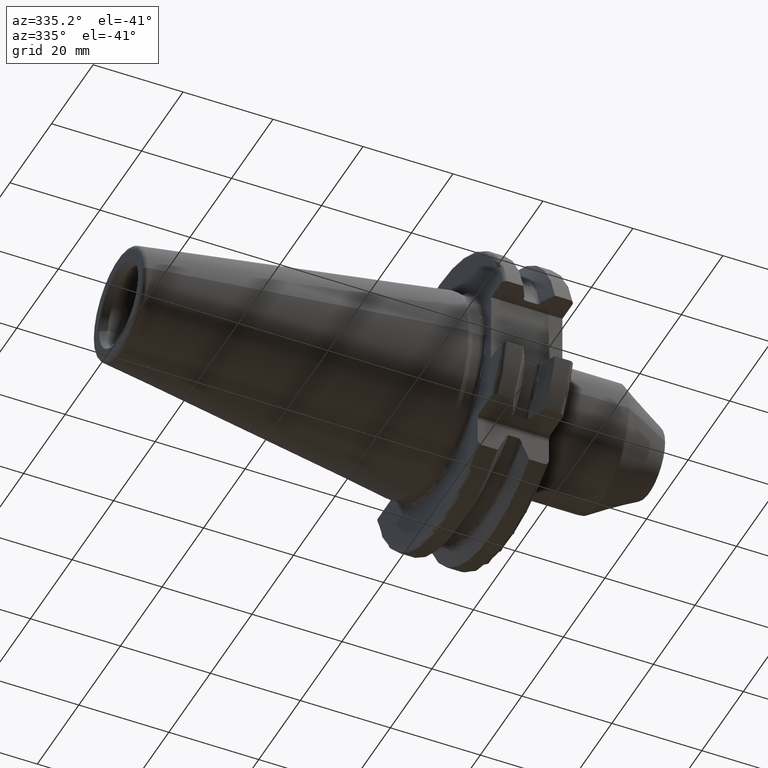
[diagram: clean part render]
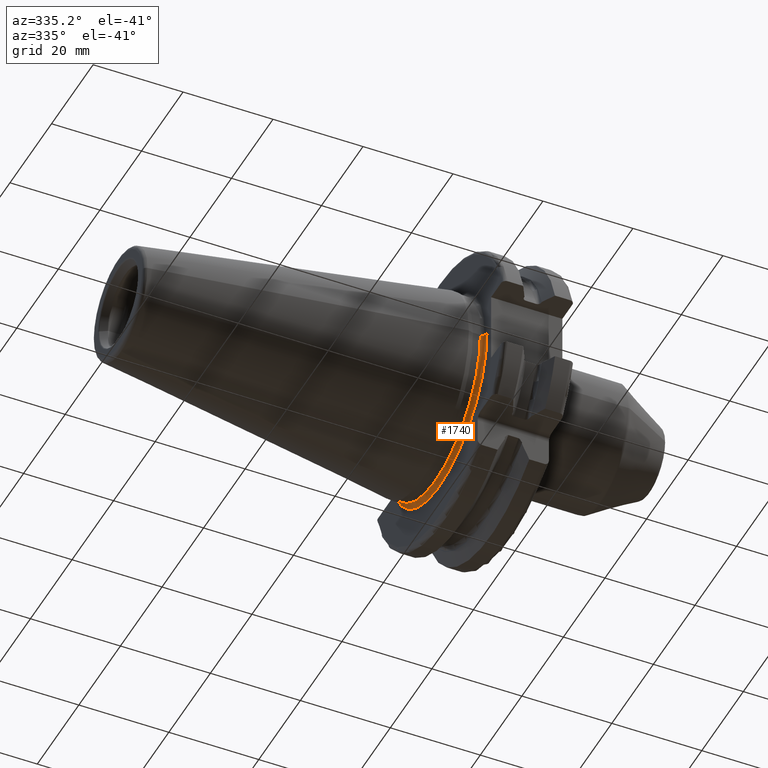
[diagram: same view with one face highlighted and labeled with its STEP entity id]
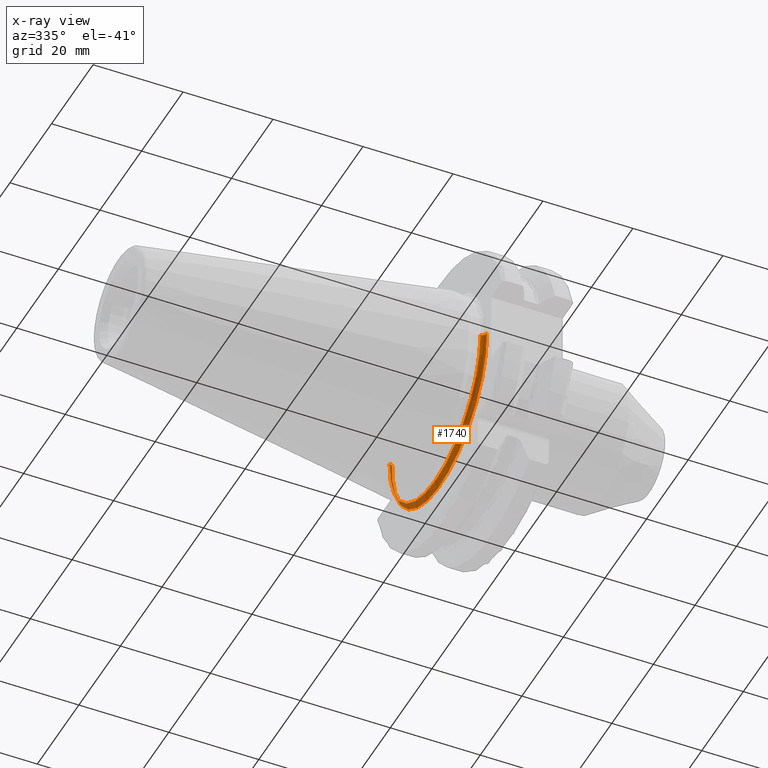
[diagram: x-ray of the same camera — body ghosted, the highlighted face saturated]
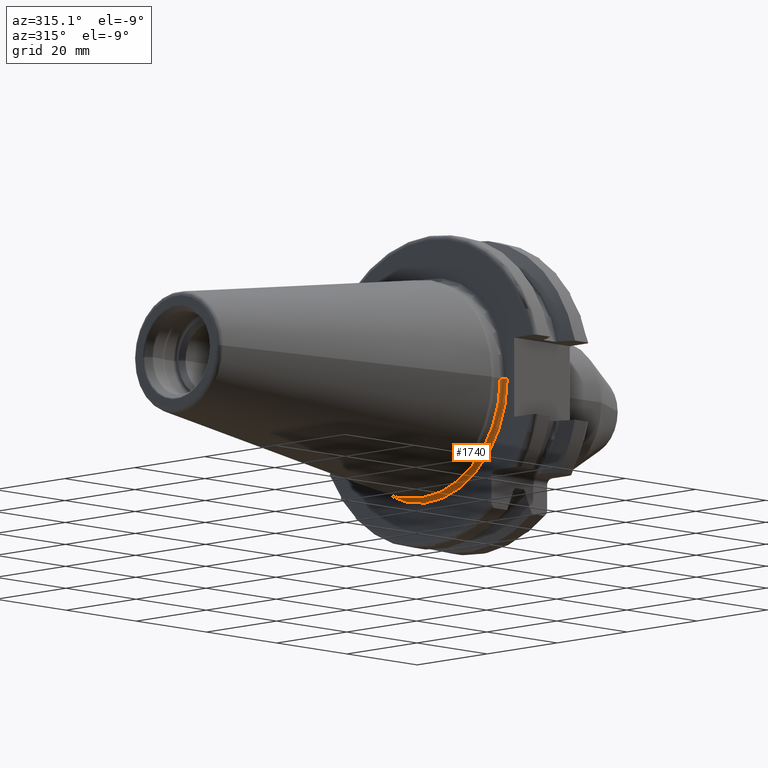
[diagram: same view with one face highlighted and labeled with its STEP entity id]
A machine part, auxiliary view. The second image highlights one B-rep face of the part: STEP entity #1740.
The next image is the same camera in x-ray: the body ghosted, the highlighted face saturated — about 4% of this face is hidden behind the body in this view.
A second angle (auxiliary view) of the same face is appended — the face is thin or edge-on in the first view.
In plain terms, the highlighted toroidal blend (fillet) surface has major radius 22.875 mm and minor (blend) radius 1 mm.
Its self-contained STEP definition (entity closure, byte-faithful):
#91=CARTESIAN_POINT('',(2.2E0,0.E0,0.E0));
#92=DIRECTION('',(-1.E0,0.E0,0.E0));
#93=DIRECTION('',(0.E0,1.E0,0.E0));
#94=AXIS2_PLACEMENT_3D('',#91,#92,#93);
#96=CARTESIAN_POINT('',(3.145714015969E0,2.255E1,0.E0));
#97=CARTESIAN_POINT('',(3.145714015969E0,2.255E1,-1.830251188857E-1));
#98=CARTESIAN_POINT('',(3.147263299438E0,2.255E1,-5.490774984715E-1));
#99=CARTESIAN_POINT('',(3.153915624300E0,2.255E1,-1.098219783342E0));
#100=CARTESIAN_POINT('',(3.163955531798E0,2.255E1,-1.647254187265E0));
#101=CARTESIAN_POINT('',(3.175890292850E0,2.255E1,-2.196155647006E0));
#102=CARTESIAN_POINT('',(3.187756155044E0,2.255E1,-2.744876756971E0));
#103=CARTESIAN_POINT('',(3.197183898560E0,2.255E1,-3.293518646440E0));
#104=CARTESIAN_POINT('',(3.2E0,2.255E1,-3.659354563864E0));
#105=CARTESIAN_POINT('',(3.2E0,2.255E1,-3.842281223440E0));
#107=CARTESIAN_POINT('',(2.2E0,2.2875E1,0.E0));
#108=DIRECTION('',(0.E0,0.E0,-1.E0));
#109=DIRECTION('',(9.457140159689E-1,-3.25E-1,0.E0));
#110=AXIS2_PLACEMENT_3D('',#107,#108,#109);
#112=CARTESIAN_POINT('',(2.2E0,-2.2875E1,0.E0));
#113=DIRECTION('',(0.E0,0.E0,1.E0));
#114=DIRECTION('',(1.E0,0.E0,0.E0));
#115=AXIS2_PLACEMENT_3D('',#112,#113,#114);
#117=CARTESIAN_POINT('',(3.2E0,0.E0,0.E0));
#118=DIRECTION('',(-1.E0,0.E0,0.E0));
#119=DIRECTION('',(0.E0,9.857923497268E-1,-1.679685780739E-1));
#120=AXIS2_PLACEMENT_3D('',#117,#118,#119);
#864=CARTESIAN_POINT('',(3.145714015969E0,2.255E1,0.E0));
#1338=CARTESIAN_POINT('',(2.2E0,2.1875E1,0.E0));
#1340=VERTEX_POINT('',#1338);
#1342=CARTESIAN_POINT('',(3.2E0,-2.2875E1,0.E0));
#1343=CARTESIAN_POINT('',(2.2E0,-2.1875E1,0.E0));
#1344=VERTEX_POINT('',#1342);
#1345=VERTEX_POINT('',#1343);
#1498=CARTESIAN_POINT('',(3.2E0,2.255E1,-3.842281223440E0));
#1500=VERTEX_POINT('',#1498);
#1520=VERTEX_POINT('',#864);
#1724=CARTESIAN_POINT('',(2.2E0,0.E0,0.E0));
#1725=DIRECTION('',(1.E0,0.E0,0.E0));
#1726=DIRECTION('',(0.E0,-1.E0,0.E0));
#1727=AXIS2_PLACEMENT_3D('',#1724,#1725,#1726);
#1728=TOROIDAL_SURFACE('',#1727,2.2875E1,1.E0);
#1730=ORIENTED_EDGE('',*,*,#1729,.F.);
#1732=ORIENTED_EDGE('',*,*,#1731,.T.);
#1733=ORIENTED_EDGE('',*,*,#1719,.T.);
#1735=ORIENTED_EDGE('',*,*,#1734,.F.);
#1737=ORIENTED_EDGE('',*,*,#1736,.F.);
#1738=EDGE_LOOP('',(#1730,#1732,#1733,#1735,#1737));
#1739=FACE_OUTER_BOUND('',#1738,.F.);
#1740=ADVANCED_FACE('',(#1739),#1728,.F.);
#95=CIRCLE('',#94,2.1875E1);
#106=B_SPLINE_CURVE_WITH_KNOTS('',3,(#96,#97,#98,#99,#100,#101,#102,#103,#104,
#105),.UNSPECIFIED.,.F.,.F.,(4,1,1,1,1,1,1,4),(0.E0,1.428571428571E-1,
2.857142857143E-1,4.285714285714E-1,5.714285714286E-1,7.142857142857E-1,
8.571428571429E-1,1.E0),.UNSPECIFIED.);
#111=CIRCLE('',#110,1.E0);
#116=CIRCLE('',#115,1.E0);
#121=CIRCLE('',#120,2.2875E1);
#1719=EDGE_CURVE('',#1340,#1345,#95,.T.);
#1729=EDGE_CURVE('',#1520,#1500,#106,.T.);
#1731=EDGE_CURVE('',#1520,#1340,#111,.T.);
#1734=EDGE_CURVE('',#1344,#1345,#116,.T.);
#1736=EDGE_CURVE('',#1500,#1344,#121,.T.);